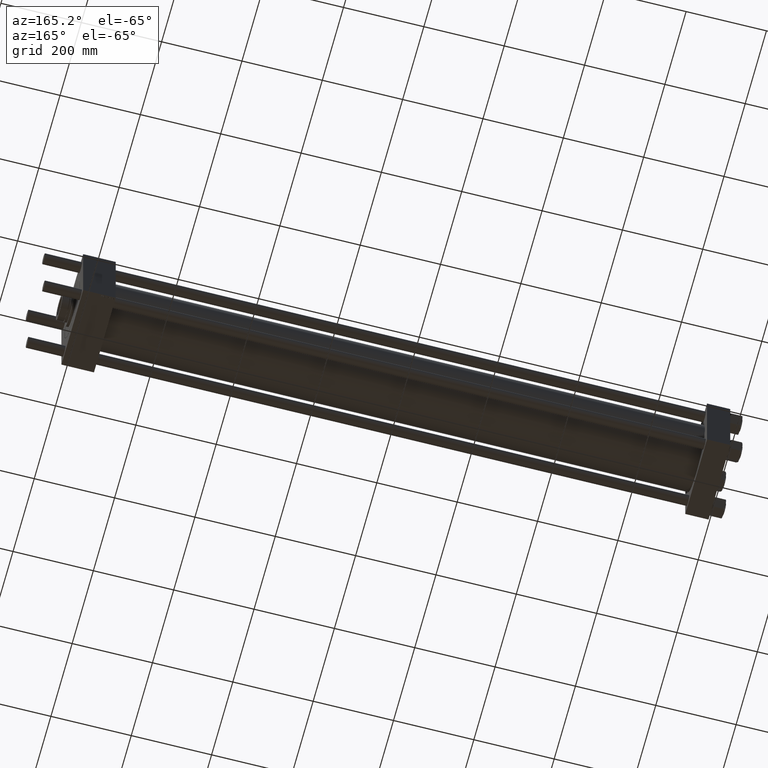
[diagram: clean part render]
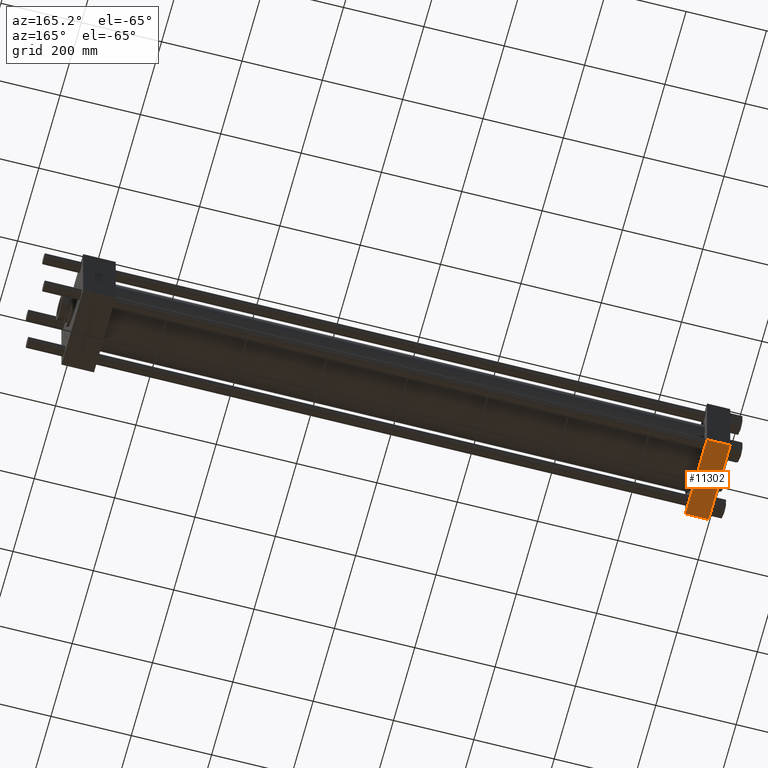
[diagram: same view with one face highlighted and labeled with its STEP entity id]
A machine part, auxiliary view. The second image highlights one B-rep face of the part: STEP entity #11302.
In plain terms, the highlighted planar face has unit normal (0, 0, -1).
Its self-contained STEP definition (entity closure, byte-faithful):
#1675 = CARTESIAN_POINT ( 'NONE',  ( 58.00000000000000000, 102.0000000000000142, -102.4999999999999716 ) ) ;
#1755 = EDGE_CURVE ( 'NONE', #53503, #38331, #20449, .T. ) ;
#2580 = VECTOR ( 'NONE', #52640, 1000.000000000000000 ) ;
#2824 = CARTESIAN_POINT ( 'NONE',  ( 58.00000000000000000, 102.5000000000000284, -102.4999999999999716 ) ) ;
#3208 = DIRECTION ( 'NONE',  ( 0.000000000000000000, 1.000000000000000000, 1.353930517835556973E-16 ) ) ;
#3515 = VERTEX_POINT ( 'NONE', #4379 ) ;
#4379 = CARTESIAN_POINT ( 'NONE',  ( 0.000000000000000000, -101.9999999999999432, -102.5000000000000000 ) ) ;
#7158 = LINE ( 'NONE', #2824, #11376 ) ;
#7831 = DIRECTION ( 'NONE',  ( 0.000000000000000000, 1.353930517835556973E-16, -1.000000000000000000 ) ) ;
#8935 = CARTESIAN_POINT ( 'NONE',  ( 0.000000000000000000, -101.9999999999999432, -102.5000000000000000 ) ) ;
#9382 = VECTOR ( 'NONE', #38128, 1000.000000000000000 ) ;
#11302 = ADVANCED_FACE ( 'NONE', ( #56456 ), #24936, .T. ) ;
#11376 = VECTOR ( 'NONE', #24556, 1000.000000000000000 ) ;
#13270 = LINE ( 'NONE', #8935, #2580 ) ;
#20449 = LINE ( 'NONE', #38691, #9382 ) ;
#21625 = DIRECTION ( 'NONE',  ( 0.000000000000000000, -1.000000000000000000, -1.353930517835556727E-16 ) ) ;
#24556 = DIRECTION ( 'NONE',  ( 0.000000000000000000, -1.000000000000000000, -1.353930517835556727E-16 ) ) ;
#24936 = PLANE ( 'NONE',  #31859 ) ;
#27112 = EDGE_CURVE ( 'NONE', #53503, #3515, #52871, .T. ) ;
#30278 = VECTOR ( 'NONE', #21625, 1000.000000000000000 ) ;
#31311 = VERTEX_POINT ( 'NONE', #32546 ) ;
#31859 = AXIS2_PLACEMENT_3D ( 'NONE', #56169, #7831, #3208 ) ;
#32546 = CARTESIAN_POINT ( 'NONE',  ( 58.00000000000000000, -101.9999999999999432, -102.5000000000000000 ) ) ;
#33051 = EDGE_LOOP ( 'NONE', ( #44203, #44833, #51678, #50656 ) ) ;
#38128 = DIRECTION ( 'NONE',  ( 1.000000000000000000, 0.000000000000000000, 0.000000000000000000 ) ) ;
#38331 = VERTEX_POINT ( 'NONE', #1675 ) ;
#38691 = CARTESIAN_POINT ( 'NONE',  ( 58.00000000000000000, 102.0000000000000142, -102.4999999999999716 ) ) ;
#44203 = ORIENTED_EDGE ( 'NONE', *, *, #27112, .F. ) ;
#44833 = ORIENTED_EDGE ( 'NONE', *, *, #1755, .T. ) ;
#48753 = EDGE_CURVE ( 'NONE', #38331, #31311, #7158, .T. ) ;
#50656 = ORIENTED_EDGE ( 'NONE', *, *, #53954, .T. ) ;
#51678 = ORIENTED_EDGE ( 'NONE', *, *, #48753, .T. ) ;
#52203 = CARTESIAN_POINT ( 'NONE',  ( 0.000000000000000000, 102.0000000000000142, -102.4999999999999716 ) ) ;
#52305 = CARTESIAN_POINT ( 'NONE',  ( 0.000000000000000000, 102.5000000000000284, -102.4999999999999716 ) ) ;
#52640 = DIRECTION ( 'NONE',  ( -1.000000000000000000, 0.000000000000000000, 0.000000000000000000 ) ) ;
#52871 = LINE ( 'NONE', #52305, #30278 ) ;
#53503 = VERTEX_POINT ( 'NONE', #52203 ) ;
#53954 = EDGE_CURVE ( 'NONE', #31311, #3515, #13270, .T. ) ;
#56169 = CARTESIAN_POINT ( 'NONE',  ( 58.00000000000000000, 102.5000000000000284, -102.4999999999999716 ) ) ;
#56456 = FACE_OUTER_BOUND ( 'NONE', #33051, .T. ) ;